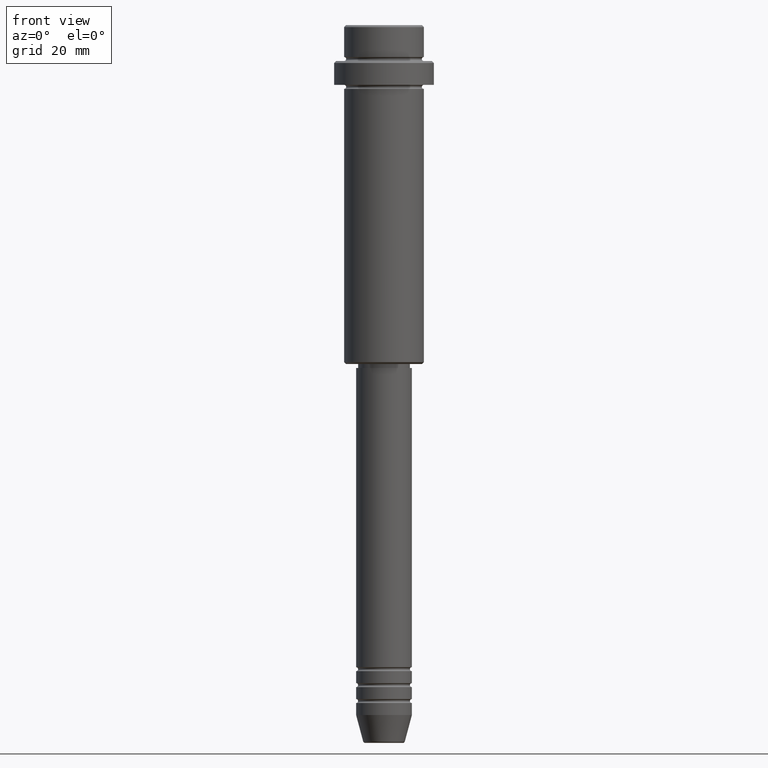
[diagram: clean part render]
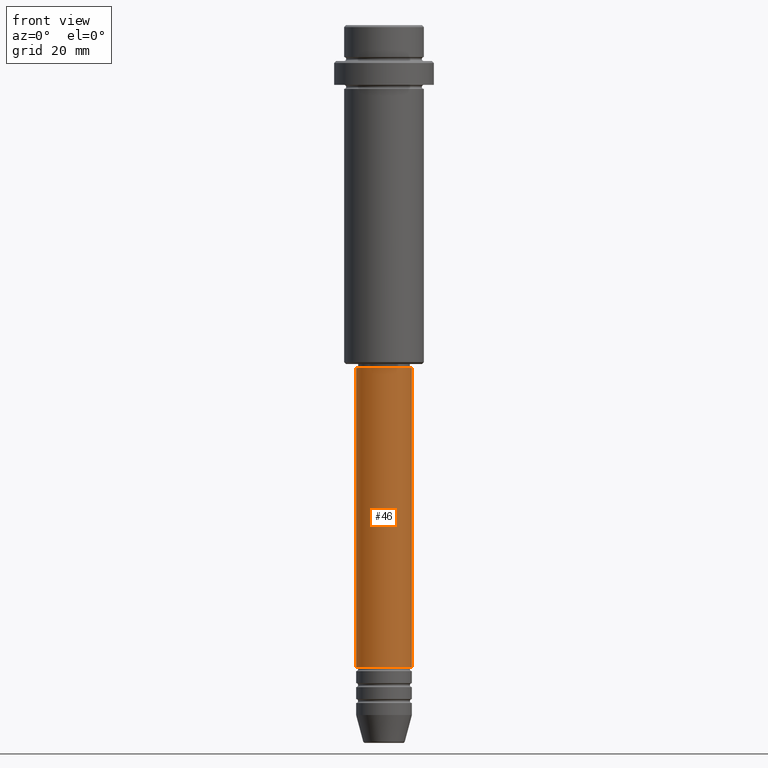
[diagram: same view with one face highlighted and labeled with its STEP entity id]
A machine part, front view. The second image highlights one B-rep face of the part: STEP entity #46.
In plain terms, the highlighted cylindrical surface (edge-blend (fillet) strip) has radius 7 mm, axis along (-0, -0, 1).
Its self-contained STEP definition (entity closure, byte-faithful):
#22 = DIRECTION ( 'NONE',  ( -0.000000000000000000, -0.000000000000000000, 1.000000000000000000 ) ) ;
#46 = ADVANCED_FACE ( 'NONE', ( #1050 ), #507, .T. ) ;
#89 = CIRCLE ( 'NONE', #589, 7.000000000000000000 ) ;
#109 = AXIS2_PLACEMENT_3D ( 'NONE', #439, #226, #118 ) ;
#118 = DIRECTION ( 'NONE',  ( 1.000000000000000000, 0.000000000000000000, 0.000000000000000000 ) ) ;
#148 = LINE ( 'NONE', #1267, #208 ) ;
#208 = VECTOR ( 'NONE', #1027, 1000.000000000000000 ) ;
#226 = DIRECTION ( 'NONE',  ( -0.000000000000000000, -0.000000000000000000, 1.000000000000000000 ) ) ;
#366 = ORIENTED_EDGE ( 'NONE', *, *, #808, .T. ) ;
#433 = CARTESIAN_POINT ( 'NONE',  ( -7.000000000000000000, 8.572527594031473190E-16, -86.00000000000000000 ) ) ;
#439 = CARTESIAN_POINT ( 'NONE',  ( 0.000000000000000000, 0.000000000000000000, -86.00000000000000000 ) ) ;
#460 = VERTEX_POINT ( 'NONE', #433 ) ;
#504 = ORIENTED_EDGE ( 'NONE', *, *, #899, .T. ) ;
#507 = CYLINDRICAL_SURFACE ( 'NONE', #1380, 7.000000000000000000 ) ;
#569 = VECTOR ( 'NONE', #1341, 1000.000000000000000 ) ;
#575 = EDGE_CURVE ( 'NONE', #460, #1298, #727, .T. ) ;
#583 = ORIENTED_EDGE ( 'NONE', *, *, #1051, .F. ) ;
#589 = AXIS2_PLACEMENT_3D ( 'NONE', #1214, #22, #1329 ) ;
#698 = CARTESIAN_POINT ( 'NONE',  ( 7.000000000000000000, 0.000000000000000000, -160.9999999999998579 ) ) ;
#727 = CIRCLE ( 'NONE', #109, 7.000000000000000000 ) ;
#808 = EDGE_CURVE ( 'NONE', #821, #953, #89, .T. ) ;
#821 = VERTEX_POINT ( 'NONE', #1205 ) ;
#822 = LINE ( 'NONE', #1260, #569 ) ;
#857 = DIRECTION ( 'NONE',  ( -0.000000000000000000, -0.000000000000000000, 1.000000000000000000 ) ) ;
#899 = EDGE_CURVE ( 'NONE', #953, #1298, #148, .T. ) ;
#940 = CARTESIAN_POINT ( 'NONE',  ( 0.000000000000000000, 0.000000000000000000, 0.000000000000000000 ) ) ;
#953 = VERTEX_POINT ( 'NONE', #698 ) ;
#1027 = DIRECTION ( 'NONE',  ( -0.000000000000000000, -0.000000000000000000, 1.000000000000000000 ) ) ;
#1033 = EDGE_LOOP ( 'NONE', ( #583, #366, #504, #1181 ) ) ;
#1050 = FACE_OUTER_BOUND ( 'NONE', #1033, .T. ) ;
#1051 = EDGE_CURVE ( 'NONE', #821, #460, #822, .T. ) ;
#1130 = DIRECTION ( 'NONE',  ( 1.000000000000000000, 0.000000000000000000, 0.000000000000000000 ) ) ;
#1181 = ORIENTED_EDGE ( 'NONE', *, *, #575, .F. ) ;
#1205 = CARTESIAN_POINT ( 'NONE',  ( -7.000000000000000000, 8.572527594031473190E-16, -160.9999999999998579 ) ) ;
#1214 = CARTESIAN_POINT ( 'NONE',  ( 0.000000000000000000, 0.000000000000000000, -160.9999999999998579 ) ) ;
#1260 = CARTESIAN_POINT ( 'NONE',  ( -7.000000000000000000, 8.572527594031473190E-16, 0.000000000000000000 ) ) ;
#1267 = CARTESIAN_POINT ( 'NONE',  ( 7.000000000000000000, 0.000000000000000000, 0.000000000000000000 ) ) ;
#1298 = VERTEX_POINT ( 'NONE', #1326 ) ;
#1326 = CARTESIAN_POINT ( 'NONE',  ( 7.000000000000000000, 0.000000000000000000, -86.00000000000000000 ) ) ;
#1329 = DIRECTION ( 'NONE',  ( 1.000000000000000000, 0.000000000000000000, 0.000000000000000000 ) ) ;
#1341 = DIRECTION ( 'NONE',  ( -0.000000000000000000, -0.000000000000000000, 1.000000000000000000 ) ) ;
#1380 = AXIS2_PLACEMENT_3D ( 'NONE', #940, #857, #1130 ) ;